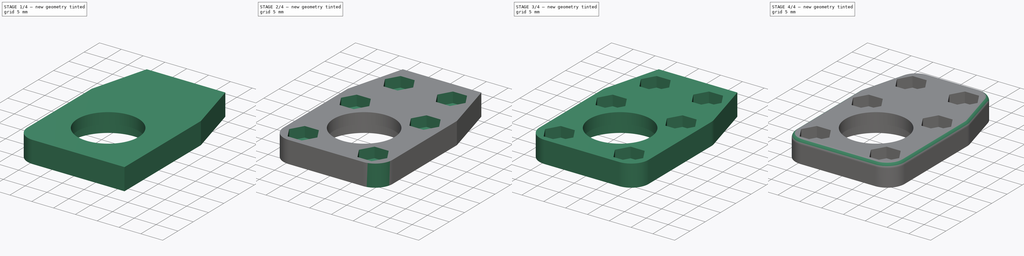
[diagram: build sequence overview — one tinted view per stage of 4, left to right]
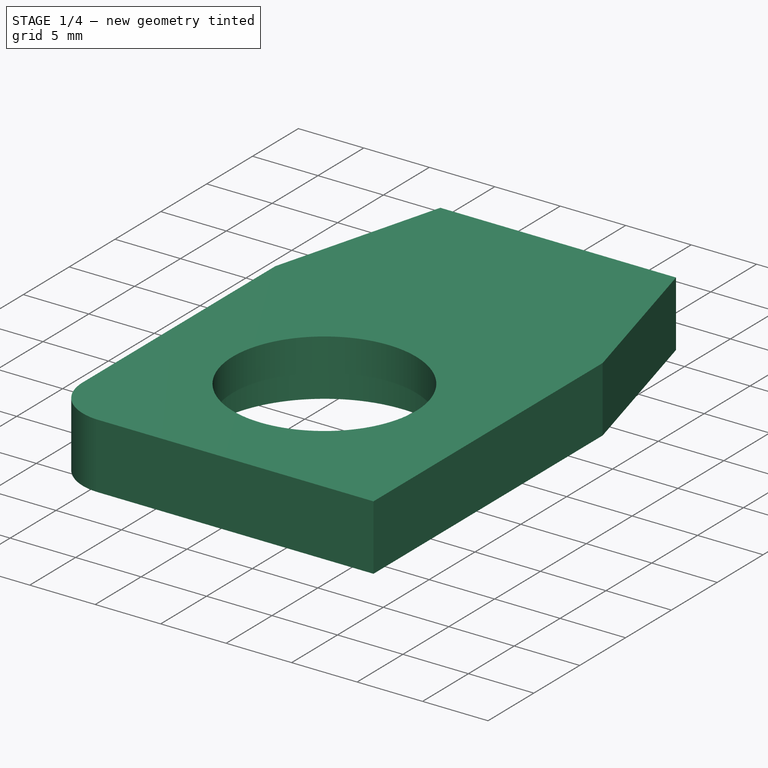
[diagram: stage 1 of 4 — iso view after this stage's code; geometry added in this stage tinted green]
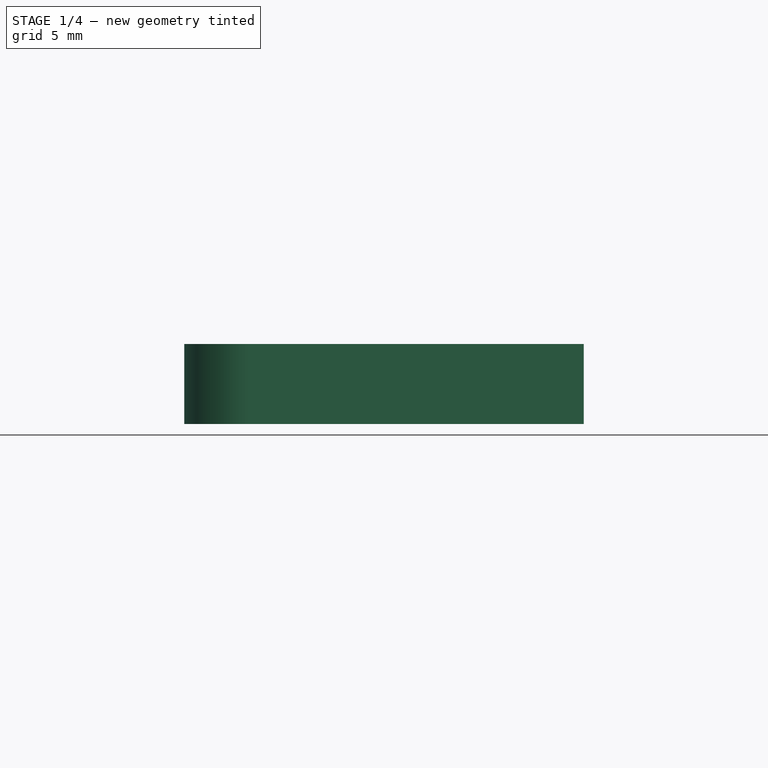
[diagram: stage 1 of 4 — front view after this stage's code; geometry added in this stage tinted green]
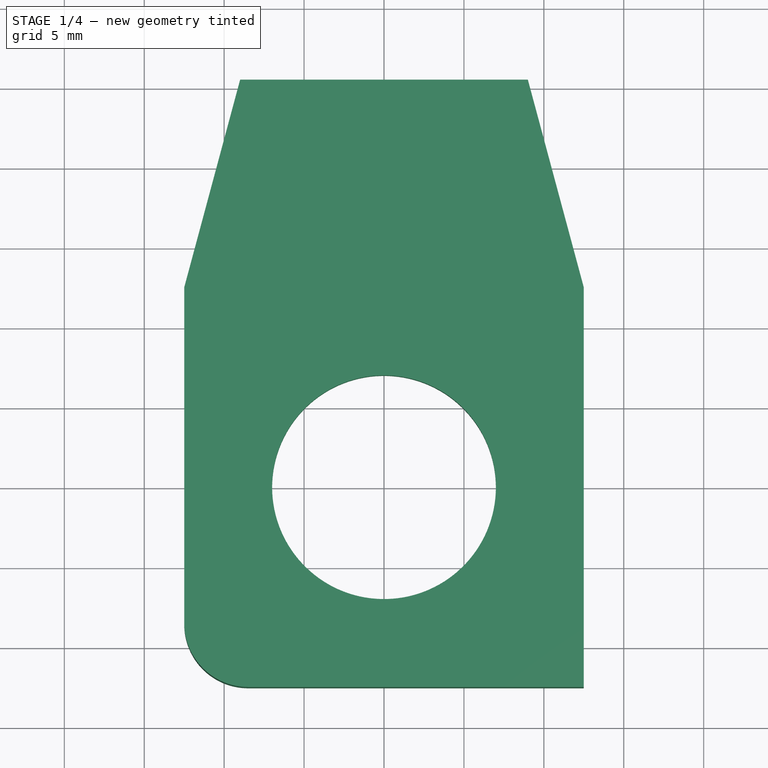
[diagram: stage 1 of 4 — top view after this stage's code; geometry added in this stage tinted green]
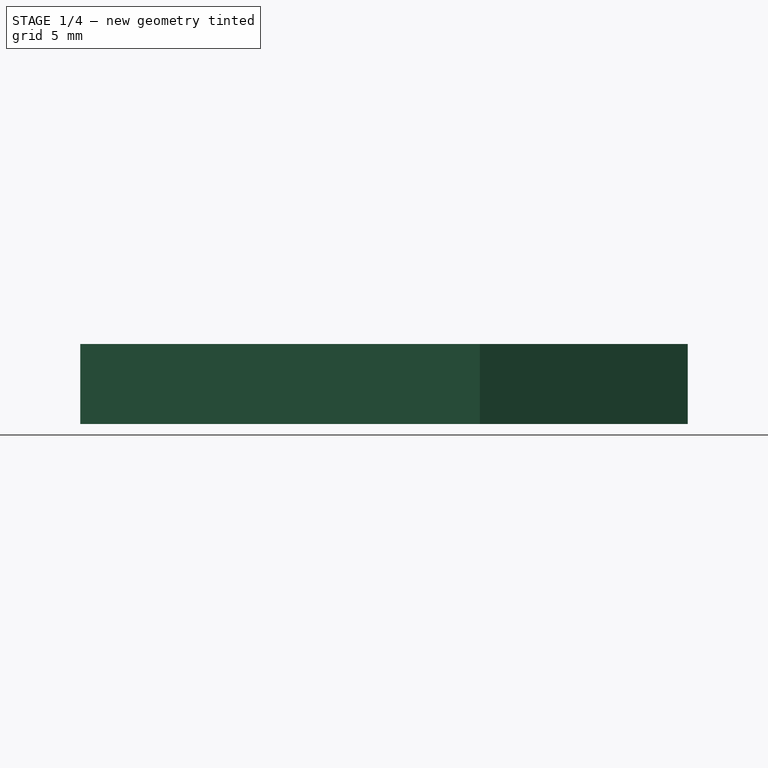
[diagram: stage 1 of 4 — right view after this stage's code; geometry added in this stage tinted green]
FCSTD DOCUMENT  (FreeCAD 0.16R6706 (Git))
Label: PushRodTailB_short
License: All rights reserved
LicenseURL: http://en.wikipedia.org/wiki/All_rights_reserved
objects: PartDesign::Fillet×7, Sketcher::SketchObject×4, PartDesign::Pocket×3, PartDesign::Pad×1
note: 19 computed .brp shape members not serialized (recipe doc carries the construction recipe); baked Part::Feature solids carry a one-line shape summary decoded from their .brp

FEATURE [Sketcher::SketchObject] Sketch
  sketch-geometry (25):
    g0: Circle CenterX=0 CenterY=0 CenterZ=0 NormalX=0 NormalY=0 NormalZ=1 Radius=7
    g1: Circle [constr] CenterX=0 CenterY=0 CenterZ=0 NormalX=0 NormalY=0 NormalZ=1 Radius=8.5
    g2: LineSegment StartX=-12.5 StartY=-12.5 StartZ=0 EndX=12.5 EndY=-12.5 EndZ=0
    g3: LineSegment StartX=12.5 StartY=-12.5 StartZ=0 EndX=12.5 EndY=12.5 EndZ=0
    g4: LineSegment StartX=12.5 StartY=12.5 StartZ=0 EndX=9 EndY=25.5 EndZ=0
    g5: LineSegment StartX=9 StartY=25.5 StartZ=0 EndX=-9 EndY=25.5 EndZ=0
    g6: LineSegment StartX=-9 StartY=25.5 StartZ=0 EndX=-12.5 EndY=12.5 EndZ=0
    g7: LineSegment StartX=-12.5 StartY=12.5 StartZ=0 EndX=-12.5 EndY=-12.5 EndZ=0
    g8: LineSegment [constr] StartX=-12.5 StartY=12.5 StartZ=0 EndX=12.5 EndY=12.5 EndZ=0
    g9: GeomPoint [constr] X=0 Y=-8.5 Z=0
    g10: LineSegment [constr] StartX=-3.05 StartY=27 StartZ=0 EndX=3.05 EndY=27 EndZ=0
    g11: LineSegment [constr] StartX=3.05 StartY=27 StartZ=0 EndX=3.05 EndY=9 EndZ=0
    g12: LineSegment [constr] StartX=3.05 StartY=9 StartZ=0 EndX=-3.05 EndY=9 EndZ=0
    g13: LineSegment [constr] StartX=-3.05 StartY=9 StartZ=0 EndX=-3.05 EndY=27 EndZ=0
    g14: Circle [constr] CenterX=-8 CenterY=8.5 CenterZ=0 NormalX=0 NormalY=0 NormalZ=1 Radius=1.7
    g15: Circle [constr] CenterX=8 CenterY=8.5 CenterZ=0 NormalX=0 NormalY=0 NormalZ=1 Radius=1.7
    g16: LineSegment [constr] StartX=-12.5 StartY=8.5 StartZ=0 EndX=12.5 EndY=8.5 EndZ=0
    g17: LineSegment [constr] StartX=-12.5 StartY=-8.5 StartZ=0 EndX=12.5 EndY=-8.5 EndZ=0
    g18: Circle [constr] CenterX=-8 CenterY=-8.5 CenterZ=0 NormalX=0 NormalY=0 NormalZ=1 Radius=1.7
    g19: Circle [constr] CenterX=8 CenterY=-8.5 CenterZ=0 NormalX=0 NormalY=0 NormalZ=1 Radius=1.7
    g20: Circle [constr] CenterX=0 CenterY=0 CenterZ=0 NormalX=0 NormalY=0 NormalZ=1 Radius=17
    g21: Circle [constr] CenterX=-6 CenterY=20 CenterZ=0 NormalX=0 NormalY=0 NormalZ=1 Radius=1.7
    g22: Circle [constr] CenterX=6 CenterY=20 CenterZ=0 NormalX=0 NormalY=0 NormalZ=1 Radius=1.7
    g23: LineSegment [constr] StartX=-6 StartY=20 StartZ=0 EndX=6 EndY=20 EndZ=0
    g24: Circle [constr] CenterX=-6 CenterY=20 CenterZ=0 NormalX=0 NormalY=0 NormalZ=1 Radius=2.5
  constraints (70):
    c: Coincident(g0,g-1)
    c: Radius(g0) = 7
    c: Coincident(g1,g-1)
    c: Radius(g1) = 8.5
    c: Horizontal(g2)
    c: Coincident(g2,g3)
    c: Vertical(g3)
    c: Coincident(g3,g4)
    c: Coincident(g4,g5)
    c: Horizontal(g5)
    c: Coincident(g5,g6)
    c: Coincident(g6,g7)
    c: Coincident(g7,g2)
    c: Vertical(g7)
    c: Coincident(g8,g6)
    c: Coincident(g8,g3)
    c: Horizontal(g8)
    c: Symmetric(g4,g5,g-2)
    c: Symmetric(g2,g6,g-1)
    c: Equal(g2,g7)
    c: PointOnObject(g9,g1)
    c: PointOnObject(g9,g-2)
    c: DistanceY(g2,g9) = 4
    c: DistanceX(g5,g4) = 18
    c: DistanceY(g6,g5) = 13
    c: Coincident(g10,g11)
    c: Coincident(g11,g12)
    c: Coincident(g12,g13)
    c: Coincident(g13,g10)
    c: Horizontal(g10)
    c: Horizontal(g12)
    c: Vertical(g11)
    c: Vertical(g13)
    c: Symmetric(g10,g10,g-2)
    c: DistanceX(g10,g10) = 6.1
    c: DistanceY(g-1,g12) = 9
    c: PointOnObject(g16,g7)
    c: Horizontal(g16)
    c: PointOnObject(g16,g3)
    c: PointOnObject(g14,g16)
    c: PointOnObject(g15,g16)
    c: Symmetric(g14,g15,g-2)
    c: DistanceX(g14,g15) = 16
    c: Radius(g14) = 1.7
    c: Equal(g14,g15)
    c: PointOnObject(g17,g7)
    c: PointOnObject(g17,g3)
    c: Horizontal(g17)
    c: PointOnObject(g18,g17)
    c: PointOnObject(g19,g17)
    c: Symmetric(g19,g18,g-2)
    c: Equal(g18,g19)
    c: Equal(g19,g14)
    c: DistanceX(g18,g19) = 16
    c: Tangent(g1,g17)
    c: Tangent(g1,g16)
    c: DistanceY(g11,g10) = 18
    c: Distance(g-1,g2) = 17.6777
    c: Radius(g20) = 17
    c: Coincident(g20,g-1)
    c: Coincident(g23,g21)
    c: Coincident(g23,g22)
    c: Horizontal(g23)
    c: Symmetric(g22,g21,g-2)
    c: DistanceY(g-1,g22) = 20
    c: Equal(g15,g22)
    c: Equal(g21,g22)
    c: DistanceX(g21,g22) = 12
    c: Coincident(g24,g21)
    c: Radius(g24) = 2.5
FEATURE [PartDesign::Pad] Pad
  Length = 5
  Length2 = 100
  Sketch = -> Sketch
  Type = 0
FEATURE [Sketcher::SketchObject] Sketch001
  Placement = pos=(0,0,0) rot=(1,0,0;3.14159rad)
  Support = -> Pad [Face8]
  sketch-geometry (5):
    g0: Circle CenterX=0 CenterY=0 CenterZ=0 NormalX=0 NormalY=0 NormalZ=1 Radius=8.5
    g1: LineSegment StartX=-3.1 StartY=-10 StartZ=0 EndX=3.1 EndY=-10 EndZ=0
    g2: LineSegment StartX=3.1 StartY=-10 StartZ=0 EndX=3.1 EndY=-30 EndZ=0
    g3: LineSegment StartX=3.1 StartY=-30 StartZ=0 EndX=-3.1 EndY=-30 EndZ=0
    g4: LineSegment StartX=-3.1 StartY=-30 StartZ=0 EndX=-3.1 EndY=-10 EndZ=0
  constraints (14):
    c: Coincident(g0,g-1)
    c: Radius(g0) = 8.5
    c: Coincident(g1,g2)
    c: Coincident(g2,g3)
    c: Coincident(g3,g4)
    c: Coincident(g4,g1)
    c: Horizontal(g1)
    c: Horizontal(g3)
    c: Vertical(g2)
    c: Vertical(g4)
    c: Symmetric(g3,g2,g-2)
    c: DistanceX(g1,g1) = 6.2
    c: DistanceY(g2,g1) = 20
    c: DistanceY(g1,g-1) = 10
FEATURE [PartDesign::Pocket] Pocket
  Length = 2.5
  Sketch = -> Sketch001
  Type = 0
FEATURE [PartDesign::Fillet] Fillet
  Base = -> Pocket [Edge1]
  Radius = 4
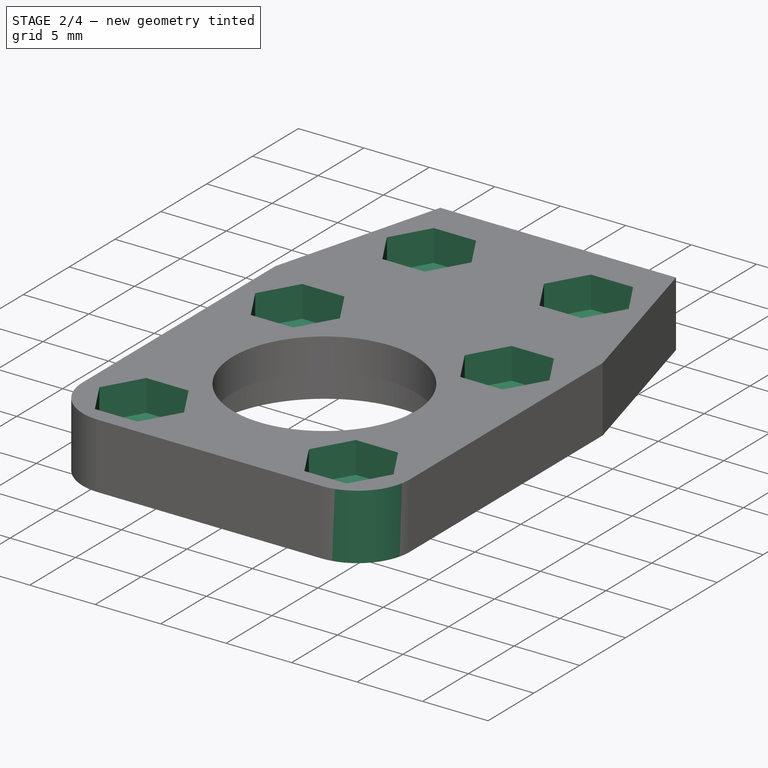
[diagram: stage 2 of 4 — iso view after this stage's code; geometry added in this stage tinted green]
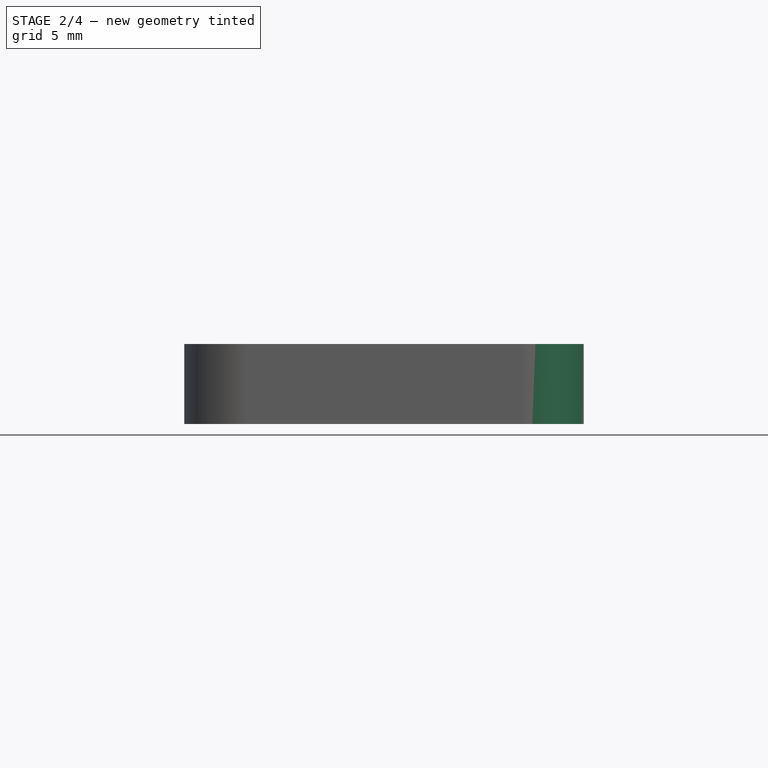
[diagram: stage 2 of 4 — front view after this stage's code; geometry added in this stage tinted green]
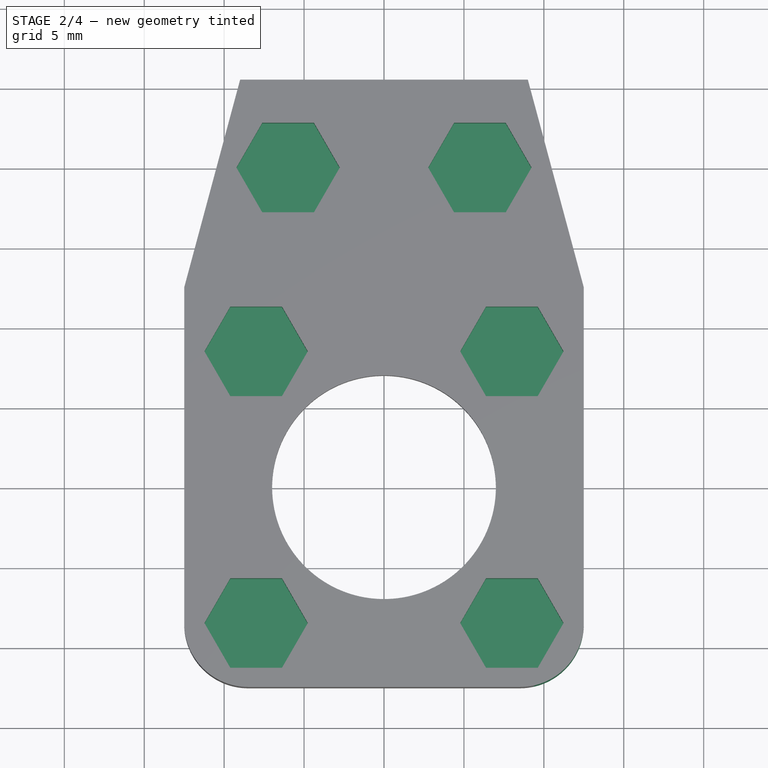
[diagram: stage 2 of 4 — top view after this stage's code; geometry added in this stage tinted green]
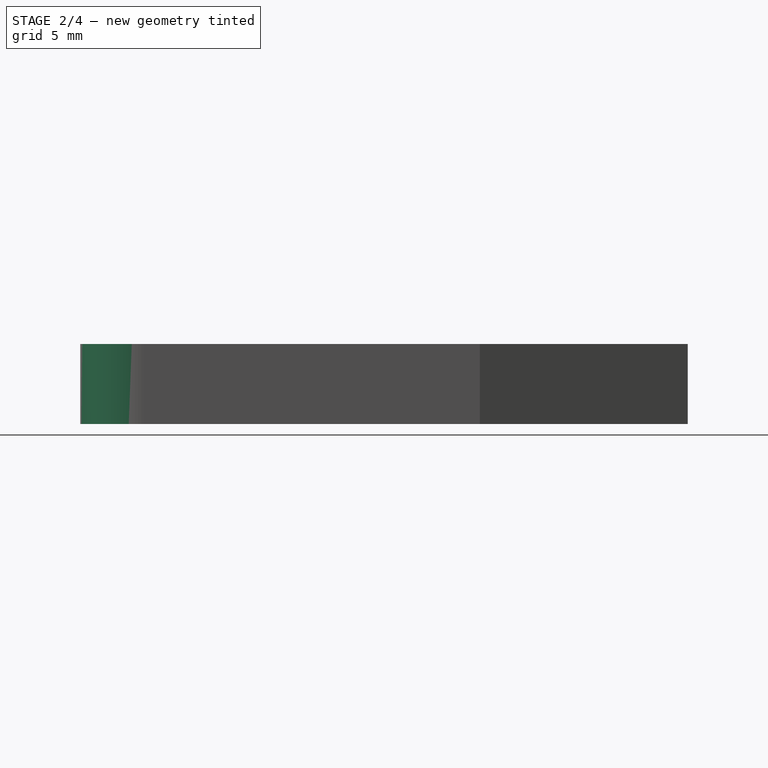
[diagram: stage 2 of 4 — right view after this stage's code; geometry added in this stage tinted green]
FEATURE [PartDesign::Fillet] Fillet001
  Base = -> Fillet [Edge3]
  Radius = 4
FEATURE [Sketcher::SketchObject] Sketch002
  Placement = pos=(0,0,5) rot=(0,0,1;0rad)
  Support = -> Fillet001 [Face5]
  sketch-geometry (47):
    g0: LineSegment [constr] StartX=-8 StartY=8.5 StartZ=0 EndX=8 EndY=8.5 EndZ=0
    g1: LineSegment [constr] StartX=8 StartY=8.5 StartZ=0 EndX=8 EndY=-8.5 EndZ=0
    g2: LineSegment [constr] StartX=8 StartY=-8.5 StartZ=0 EndX=-8 EndY=-8.5 EndZ=0
    g3: LineSegment [constr] StartX=-8 StartY=-8.5 StartZ=0 EndX=-8 EndY=8.5 EndZ=0
    g4: LineSegment [constr] StartX=-6 StartY=20 StartZ=0 EndX=6 EndY=20 EndZ=0
    g5: LineSegment StartX=-9.61658 StartY=11.3 StartZ=0 EndX=-11.2332 EndY=8.5 EndZ=0
    g6: LineSegment StartX=-11.2332 StartY=8.5 StartZ=0 EndX=-9.61658 EndY=5.7 EndZ=0
    g7: LineSegment StartX=-9.61658 StartY=5.7 StartZ=0 EndX=-6.38342 EndY=5.7 EndZ=0
    g8: LineSegment StartX=-6.38342 StartY=5.7 StartZ=0 EndX=-4.76684 EndY=8.5 EndZ=0
    g9: LineSegment StartX=-4.76684 StartY=8.5 StartZ=0 EndX=-6.38342 EndY=11.3 EndZ=0
    g10: LineSegment StartX=-6.38342 StartY=11.3 StartZ=0 EndX=-9.61658 EndY=11.3 EndZ=0
    g11: Circle [constr] CenterX=-8 CenterY=8.5 CenterZ=0 NormalX=0 NormalY=0 NormalZ=1 Radius=3.23316
    g12: LineSegment StartX=6.38342 StartY=11.3 StartZ=0 EndX=4.76684 EndY=8.5 EndZ=0
    g13: LineSegment StartX=4.76684 StartY=8.5 StartZ=0 EndX=6.38342 EndY=5.7 EndZ=0
    g14: LineSegment StartX=6.38342 StartY=5.7 StartZ=0 EndX=9.61658 EndY=5.7 EndZ=0
    g15: LineSegment StartX=9.61658 StartY=5.7 StartZ=0 EndX=11.2332 EndY=8.5 EndZ=0
    g16: LineSegment StartX=11.2332 StartY=8.5 StartZ=0 EndX=9.61658 EndY=11.3 EndZ=0
    g17: LineSegment StartX=9.61658 StartY=11.3 StartZ=0 EndX=6.38342 EndY=11.3 EndZ=0
    g18: Circle [constr] CenterX=8 CenterY=8.5 CenterZ=0 NormalX=0 NormalY=0 NormalZ=1 Radius=3.23316
    g19: LineSegment StartX=-9.61658 StartY=-5.7 StartZ=0 EndX=-11.2332 EndY=-8.5 EndZ=0
    g20: LineSegment StartX=-11.2332 StartY=-8.5 StartZ=0 EndX=-9.61658 EndY=-11.3 EndZ=0
    g21: LineSegment StartX=-9.61658 StartY=-11.3 StartZ=0 EndX=-6.38342 EndY=-11.3 EndZ=0
    g22: LineSegment StartX=-6.38342 StartY=-11.3 StartZ=0 EndX=-4.76684 EndY=-8.5 EndZ=0
    g23: LineSegment StartX=-4.76684 StartY=-8.5 StartZ=0 EndX=-6.38342 EndY=-5.7 EndZ=0
    g24: LineSegment StartX=-6.38342 StartY=-5.7 StartZ=0 EndX=-9.61658 EndY=-5.7 EndZ=0
    g25: Circle [constr] CenterX=-8 CenterY=-8.5 CenterZ=0 NormalX=0 NormalY=0 NormalZ=1 Radius=3.23316
    g26: LineSegment StartX=6.38342 StartY=-5.7 StartZ=0 EndX=4.76684 EndY=-8.5 EndZ=0
    g27: LineSegment StartX=4.76684 StartY=-8.5 StartZ=0 EndX=6.38342 EndY=-11.3 EndZ=0
    g28: LineSegment StartX=6.38342 StartY=-11.3 StartZ=0 EndX=9.61658 EndY=-11.3 EndZ=0
    g29: LineSegment StartX=9.61658 StartY=-11.3 StartZ=0 EndX=11.2332 EndY=-8.5 EndZ=0
    g30: LineSegment StartX=11.2332 StartY=-8.5 StartZ=0 EndX=9.61658 EndY=-5.7 EndZ=0
    g31: LineSegment StartX=9.61658 StartY=-5.7 StartZ=0 EndX=6.38342 EndY=-5.7 EndZ=0
    g32: Circle [constr] CenterX=8 CenterY=-8.5 CenterZ=0 NormalX=0 NormalY=0 NormalZ=1 Radius=3.23316
    g33: LineSegment StartX=-7.61658 StartY=22.8 StartZ=0 EndX=-9.23316 EndY=20 EndZ=0
    g34: LineSegment StartX=-9.23316 StartY=20 StartZ=0 EndX=-7.61658 EndY=17.2 EndZ=0
    g35: LineSegment StartX=-7.61658 StartY=17.2 StartZ=0 EndX=-4.38342 EndY=17.2 EndZ=0
    g36: LineSegment StartX=-4.38342 StartY=17.2 StartZ=0 EndX=-2.76684 EndY=20 EndZ=0
    g37: LineSegment StartX=-2.76684 StartY=20 StartZ=0 EndX=-4.38342 EndY=22.8 EndZ=0
    g38: LineSegment StartX=-4.38342 StartY=22.8 StartZ=0 EndX=-7.61658 EndY=22.8 EndZ=0
    g39: Circle [constr] CenterX=-6 CenterY=20 CenterZ=0 NormalX=0 NormalY=0 NormalZ=1 Radius=3.23316
    g40: LineSegment StartX=4.38342 StartY=22.8 StartZ=0 EndX=2.76684 EndY=20 EndZ=0
    g41: LineSegment StartX=2.76684 StartY=20 StartZ=0 EndX=4.38342 EndY=17.2 EndZ=0
    g42: LineSegment StartX=4.38342 StartY=17.2 StartZ=0 EndX=7.61658 EndY=17.2 EndZ=0
    g43: LineSegment StartX=7.61658 StartY=17.2 StartZ=0 EndX=9.23316 EndY=20 EndZ=0
    g44: LineSegment StartX=9.23316 StartY=20 StartZ=0 EndX=7.61658 EndY=22.8 EndZ=0
    g45: LineSegment StartX=7.61658 StartY=22.8 StartZ=0 EndX=4.38342 EndY=22.8 EndZ=0
    g46: Circle [constr] CenterX=6 CenterY=20 CenterZ=0 NormalX=0 NormalY=0 NormalZ=1 Radius=3.23316
  constraints (111):
    c: Coincident(g0,g1)
    c: Coincident(g1,g2)
    c: Coincident(g2,g3)
    c: Coincident(g3,g0)
    c: Horizontal(g0)
    c: Horizontal(g2)
    c: Vertical(g1)
    c: Vertical(g3)
    c: DistanceX(g2,g1) = 16
    c: Symmetric(g2,g0,g-1)
    c: DistanceY(g1,g0) = 17
    c: Horizontal(g4)
    c: Symmetric(g4,g4,g-2)
    c: DistanceX(g4,g4) = 12
    c: Coincident(g5,g6)
    c: Coincident(g6,g7)
    c: Coincident(g7,g8)
    c: Coincident(g8,g9)
    c: Coincident(g9,g10)
    c: Coincident(g10,g5)
    c: Equal(g5, g6-g10) x5
    c: PointOnObject(g5,g11)
    c: PointOnObject(g6,g11)
    c: PointOnObject(g7,g11)
    c: PointOnObject(g8,g11)
    c: PointOnObject(g9,g11)
    c: PointOnObject(g10,g11)
    c: Coincident(g11,g0)
    c: Coincident(g12,g13)
    c: Coincident(g13,g14)
    c: Coincident(g14,g15)
    c: Coincident(g15,g16)
    c: Coincident(g16,g17)
    c: Coincident(g17,g12)
    c: Equal(g12, g13-g17) x5
    c: PointOnObject(g12,g18)
    c: PointOnObject(g13,g18)
    c: PointOnObject(g14,g18)
    c: PointOnObject(g15,g18)
    c: PointOnObject(g16,g18)
    c: PointOnObject(g17,g18)
    c: Coincident(g19,g20)
    c: Coincident(g20,g21)
    c: Coincident(g21,g22)
    c: Coincident(g22,g23)
    c: Coincident(g23,g24)
    c: Coincident(g24,g19)
    c: Equal(g19, g20-g24) x5
    c: PointOnObject(g19,g25)
    c: PointOnObject(g20,g25)
    c: PointOnObject(g21,g25)
    c: PointOnObject(g22,g25)
    c: PointOnObject(g23,g25)
    c: PointOnObject(g24,g25)
    c: Coincident(g25,g2)
    c: Coincident(g26,g27)
    c: Coincident(g27,g28)
    c: Coincident(g28,g29)
    c: Coincident(g29,g30)
    c: Coincident(g30,g31)
    c: Coincident(g31,g26)
    c: Equal(g26, g27-g31) x5
    c: PointOnObject(g26,g32)
    c: PointOnObject(g27,g32)
    c: PointOnObject(g28,g32)
    c: PointOnObject(g29,g32)
    c: PointOnObject(g30,g32)
    c: PointOnObject(g31,g32)
    c: Coincident(g32,g1)
    c: Coincident(g33,g34)
    c: Coincident(g34,g35)
    c: Coincident(g35,g36)
    c: Coincident(g36,g37)
    c: Coincident(g37,g38)
    c: Coincident(g38,g33)
    c: Equal(g33, g34-g38) x5
    c: PointOnObject(g33,g39)
    c: PointOnObject(g34,g39)
    c: PointOnObject(g35,g39)
    c: PointOnObject(g36,g39)
    c: PointOnObject(g37,g39)
    c: PointOnObject(g38,g39)
    c: Coincident(g39,g4)
    c: Coincident(g40,g41)
    c: Coincident(g41,g42)
    c: Coincident(g42,g43)
    c: Coincident(g43,g44)
    c: Coincident(g44,g45)
    c: Coincident(g45,g40)
    c: Equal(g40, g41-g45) x5
    c: PointOnObject(g40,g46)
    c: PointOnObject(g41,g46)
    c: PointOnObject(g42,g46)
    c: PointOnObject(g43,g46)
    c: PointOnObject(g44,g46)
    c: PointOnObject(g45,g46)
    c: Horizontal(g21)
    c: Horizontal(g7)
    c: Coincident(g18,g0)
    c: Horizontal(g14)
    c: Horizontal(g28)
    c: Horizontal(g35)
    c: Horizontal(g42)
    c: Coincident(g46,g4)
    c: DistanceY(g14,g16) = 5.6
    c: Equal(g11,g18)
    c: Equal(g18,g32)
    c: Equal(g18,g25)
    c: Equal(g18,g39)
    c: Equal(g46,g18)
    c: DistanceY(g-1,g40) = 20
FEATURE [PartDesign::Pocket] Pocket001
  Length = 2.4
  Sketch = -> Sketch002
  Type = 0
FEATURE [Sketcher::SketchObject] Sketch003
  Placement = pos=(0,0,0) rot=(1,0,0;3.14159rad)
  Support = -> Pocket001 [Face2]
  sketch-geometry (25):
    g0: Circle [constr] CenterX=0 CenterY=0 CenterZ=0 NormalX=0 NormalY=0 NormalZ=1 Radius=7
    g1: Circle [constr] CenterX=0 CenterY=0 CenterZ=0 NormalX=0 NormalY=0 NormalZ=1 Radius=8.5
    g2: LineSegment [constr] StartX=-12.5 StartY=-12.5 StartZ=0 EndX=12.5 EndY=-12.5 EndZ=0
    g3: LineSegment [constr] StartX=12.5 StartY=-12.5 StartZ=0 EndX=12.5 EndY=12.5 EndZ=0
    g4: LineSegment [constr] StartX=12.5 StartY=12.5 StartZ=0 EndX=9 EndY=28.5 EndZ=0
    g5: LineSegment [constr] StartX=9 StartY=28.5 StartZ=0 EndX=-9 EndY=28.5 EndZ=0
    g6: LineSegment [constr] StartX=-9 StartY=28.5 StartZ=0 EndX=-12.5 EndY=12.5 EndZ=0
    g7: LineSegment [constr] StartX=-12.5 StartY=12.5 StartZ=0 EndX=-12.5 EndY=-12.5 EndZ=0
    g8: LineSegment [constr] StartX=-12.5 StartY=12.5 StartZ=0 EndX=12.5 EndY=12.5 EndZ=0
    g9: GeomPoint [constr] X=0 Y=-8.5 Z=0
    g10: LineSegment [constr] StartX=-3.05 StartY=27 StartZ=0 EndX=3.05 EndY=27 EndZ=0
    g11: LineSegment [constr] StartX=3.05 StartY=27 StartZ=0 EndX=3.05 EndY=9 EndZ=0
    g12: LineSegment [constr] StartX=3.05 StartY=9 StartZ=0 EndX=-3.05 EndY=9 EndZ=0
    g13: LineSegment [constr] StartX=-3.05 StartY=9 StartZ=0 EndX=-3.05 EndY=27 EndZ=0
    g14: Circle CenterX=-8 CenterY=8.5 CenterZ=0 NormalX=0 NormalY=0 NormalZ=1 Radius=1.7
    g15: Circle CenterX=8 CenterY=8.5 CenterZ=0 NormalX=0 NormalY=0 NormalZ=1 Radius=1.7
    g16: LineSegment [constr] StartX=-12.5 StartY=8.5 StartZ=0 EndX=12.5 EndY=8.5 EndZ=0
    g17: LineSegment [constr] StartX=-12.5 StartY=-8.5 StartZ=0 EndX=12.5 EndY=-8.5 EndZ=0
    g18: Circle CenterX=-8 CenterY=-8.5 CenterZ=0 NormalX=0 NormalY=0 NormalZ=1 Radius=1.7
    g19: Circle CenterX=8 CenterY=-8.5 CenterZ=0 NormalX=0 NormalY=0 NormalZ=1 Radius=1.7
    g20: Circle [constr] CenterX=0 CenterY=0 CenterZ=0 NormalX=0 NormalY=0 NormalZ=1 Radius=17
    g21: Circle CenterX=-6 CenterY=-20 CenterZ=0 NormalX=0 NormalY=0 NormalZ=1 Radius=1.7
    g22: Circle CenterX=6 CenterY=-20 CenterZ=0 NormalX=0 NormalY=0 NormalZ=1 Radius=1.7
    g23: LineSegment [constr] StartX=-6 StartY=-20 StartZ=0 EndX=6 EndY=-20 EndZ=0
    g24: Circle [constr] CenterX=-6 CenterY=-20 CenterZ=0 NormalX=0 NormalY=0 NormalZ=1 Radius=2.5
  constraints (70):
    c: Coincident(g0,g-1)
    c: Radius(g0) = 7
    c: Coincident(g1,g-1)
    c: Radius(g1) = 8.5
    c: Horizontal(g2)
    c: Coincident(g2,g3)
    c: Vertical(g3)
    c: Coincident(g3,g4)
    c: Coincident(g4,g5)
    c: Horizontal(g5)
    c: Coincident(g5,g6)
    c: Coincident(g6,g7)
    c: Coincident(g7,g2)
    c: Vertical(g7)
    c: Coincident(g8,g6)
    c: Coincident(g8,g3)
    c: Horizontal(g8)
    c: Symmetric(g4,g5,g-2)
    c: Symmetric(g2,g6,g-1)
    c: Equal(g2,g7)
    c: PointOnObject(g9,g1)
    c: PointOnObject(g9,g-2)
    c: DistanceY(g2,g9) = 4
    c: DistanceX(g5,g4) = 18
    c: DistanceY(g6,g5) = 16
    c: Coincident(g10,g11)
    c: Coincident(g11,g12)
    c: Coincident(g12,g13)
    c: Coincident(g13,g10)
    c: Horizontal(g10)
    c: Horizontal(g12)
    c: Vertical(g11)
    c: Vertical(g13)
    c: Symmetric(g10,g10,g-2)
    c: DistanceX(g10,g10) = 6.1
    c: DistanceY(g-1,g12) = 9
    c: PointOnObject(g16,g7)
    c: Horizontal(g16)
    c: PointOnObject(g16,g3)
    c: PointOnObject(g14,g16)
    c: PointOnObject(g15,g16)
    c: Symmetric(g14,g15,g-2)
    c: DistanceX(g14,g15) = 16
    c: Radius(g14) = 1.7
    c: Equal(g14,g15)
    c: PointOnObject(g17,g7)
    c: PointOnObject(g17,g3)
    c: Horizontal(g17)
    c: PointOnObject(g18,g17)
    c: PointOnObject(g19,g17)
    c: Symmetric(g19,g18,g-2)
    c: Equal(g18,g19)
    c: Equal(g19,g14)
    c: DistanceX(g18,g19) = 16
    c: Tangent(g1,g17)
    c: Tangent(g1,g16)
    c: DistanceY(g11,g10) = 18
    c: Distance(g-1,g2) = 17.6777
    c: Radius(g20) = 17
    c: Coincident(g20,g-1)
    c: Coincident(g23,g21)
    c: Coincident(g23,g22)
    c: Horizontal(g23)
    c: Symmetric(g22,g21,g-2)
    c: Equal(g15,g22)
    c: Equal(g21,g22)
    c: DistanceX(g21,g22) = 12
    c: Coincident(g24,g21)
    c: Radius(g24) = 2.5
    c: DistanceY(g22,g-1) = 20
FEATURE [PartDesign::Pocket] Pocket002
  Length = 2.4
  Sketch = -> Sketch003
  Type = 0
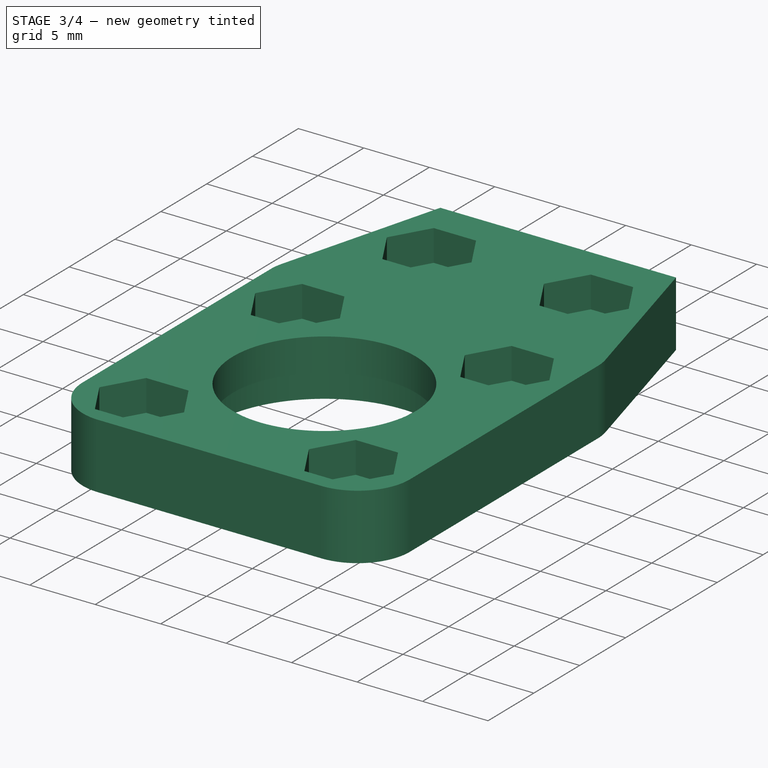
[diagram: stage 3 of 4 — iso view after this stage's code; geometry added in this stage tinted green]
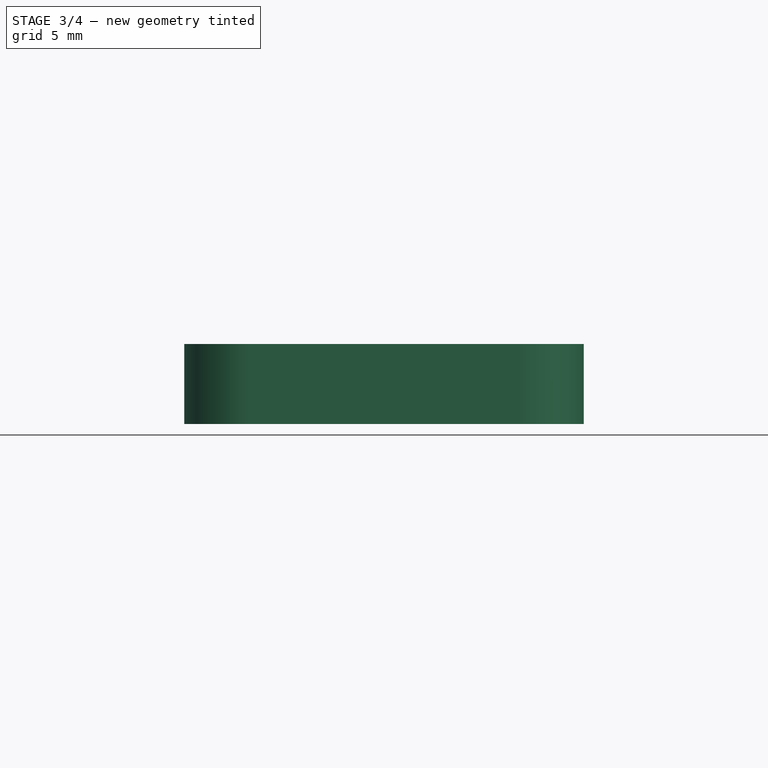
[diagram: stage 3 of 4 — front view after this stage's code; geometry added in this stage tinted green]
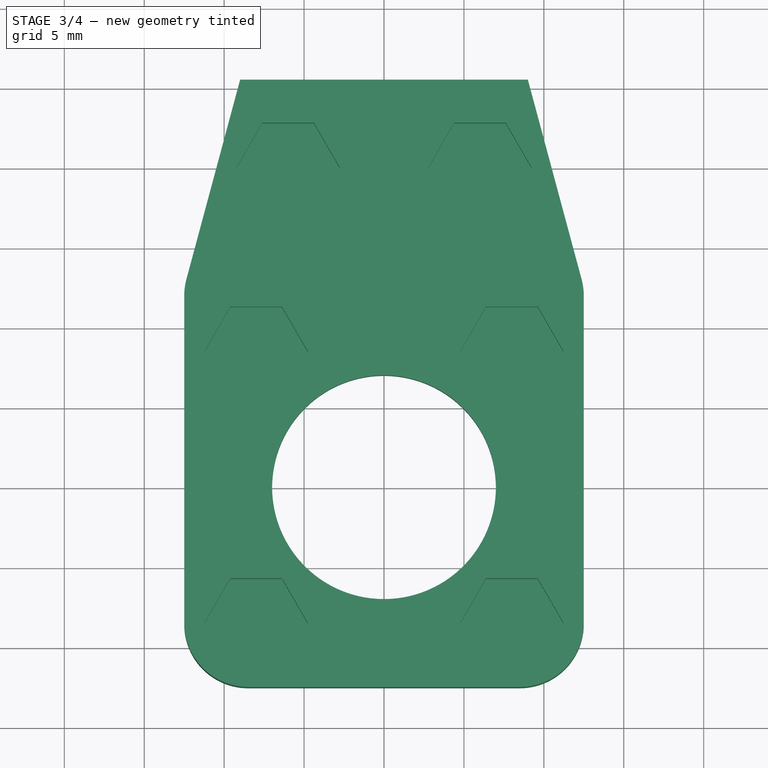
[diagram: stage 3 of 4 — top view after this stage's code; geometry added in this stage tinted green]
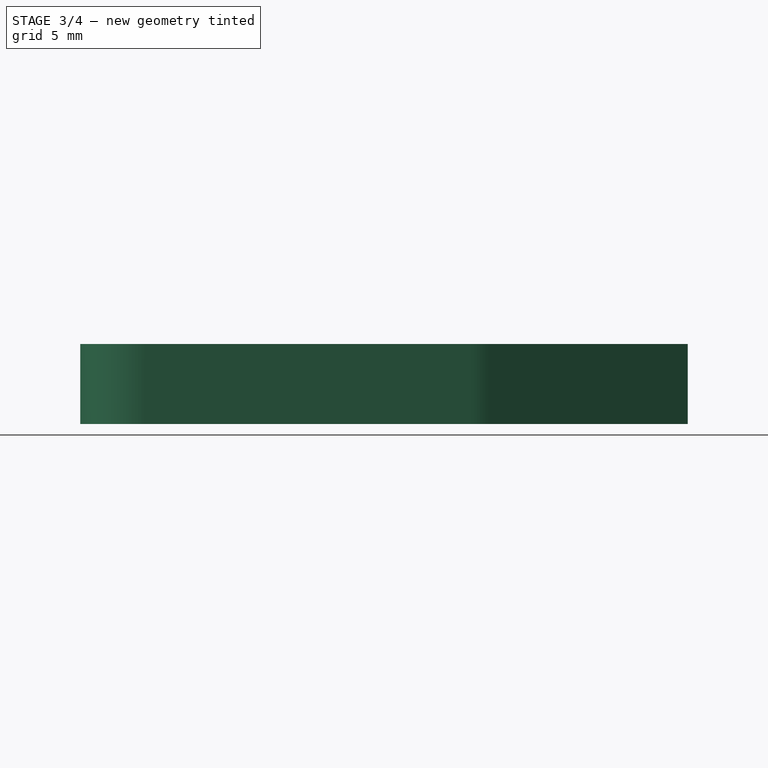
[diagram: stage 3 of 4 — right view after this stage's code; geometry added in this stage tinted green]
FEATURE [PartDesign::Fillet] Fillet002
  Base = -> Pocket002 [Edge69]
  Radius = 4
FEATURE [PartDesign::Fillet] Fillet003
  Base = -> Fillet002 [Edge41]
  Radius = 4
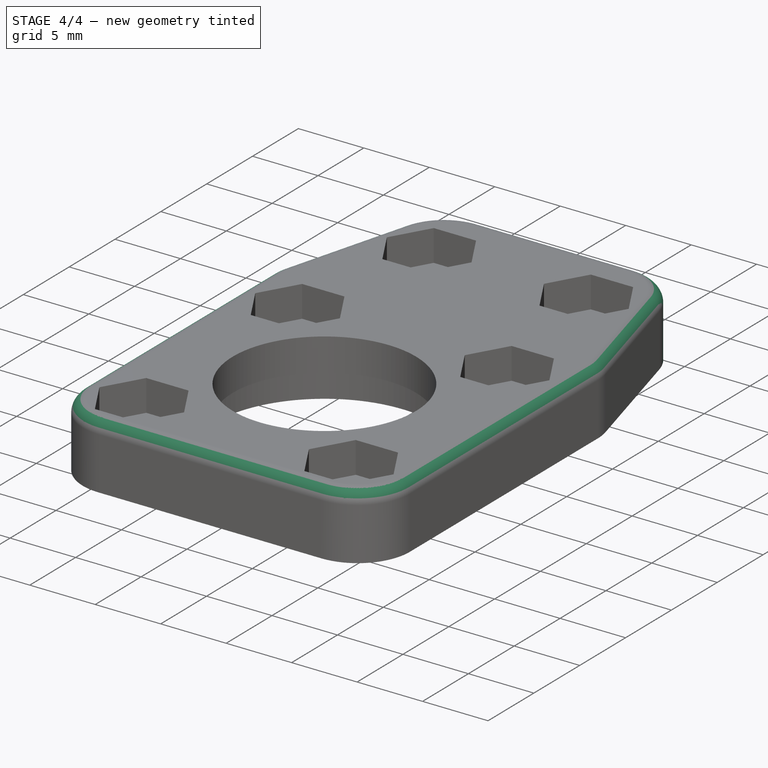
[diagram: stage 4 of 4 — iso view after this stage's code; geometry added in this stage tinted green]
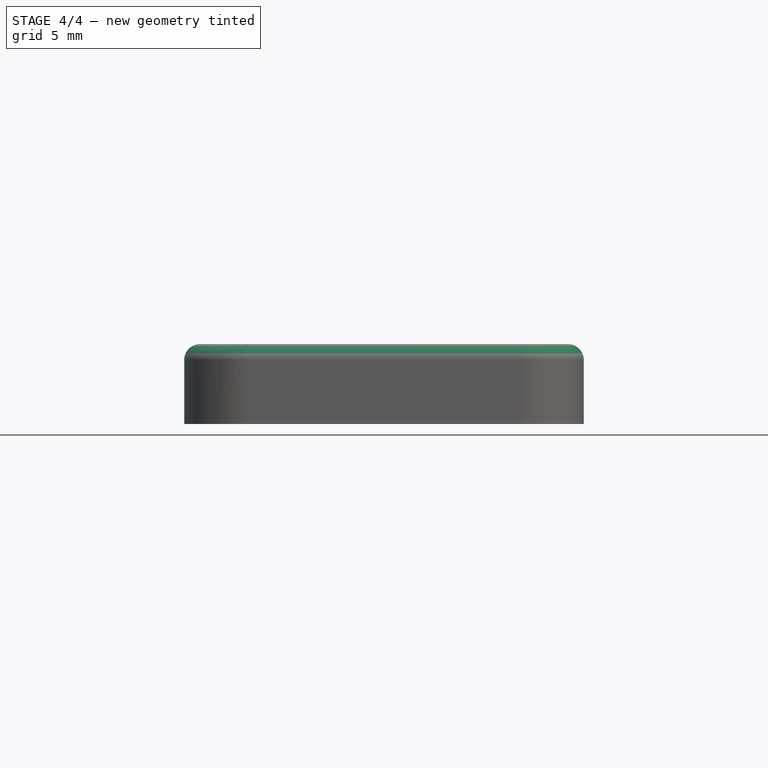
[diagram: stage 4 of 4 — front view after this stage's code; geometry added in this stage tinted green]
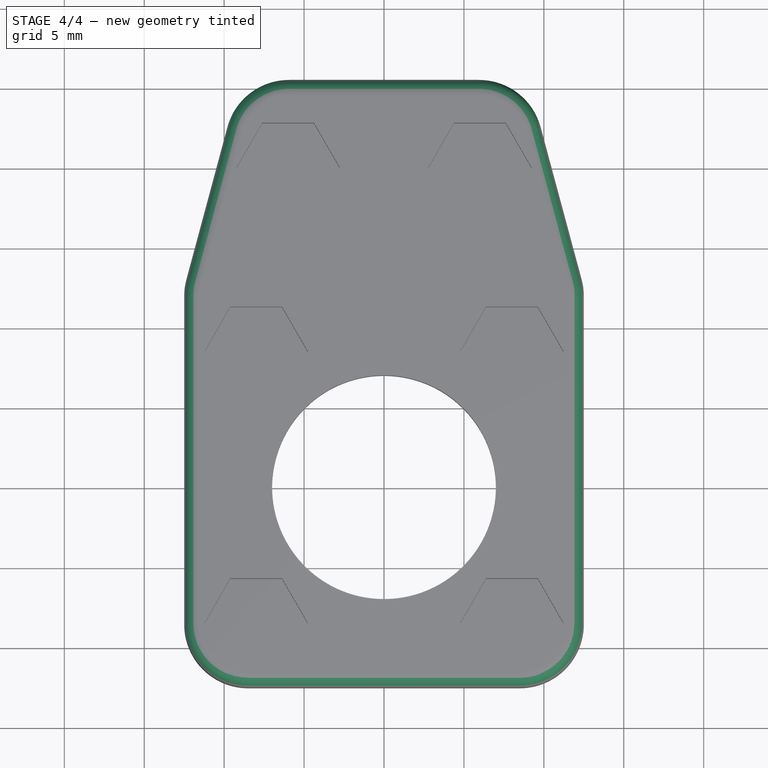
[diagram: stage 4 of 4 — top view after this stage's code; geometry added in this stage tinted green]
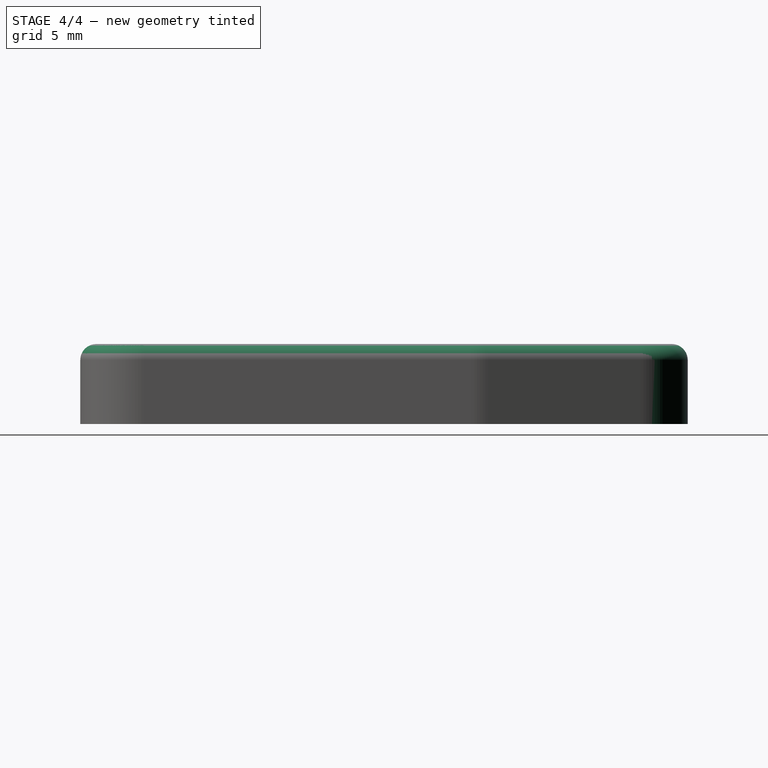
[diagram: stage 4 of 4 — right view after this stage's code; geometry added in this stage tinted green]
FEATURE [PartDesign::Fillet] Fillet004
  Base = -> Fillet003 [Edge29]
  Radius = 4
FEATURE [PartDesign::Fillet] Fillet005
  Base = -> Fillet004 [Edge33]
  Radius = 4
FEATURE [PartDesign::Fillet] Fillet006
  Base = -> Fillet005 [Edge35]
  Radius = 1
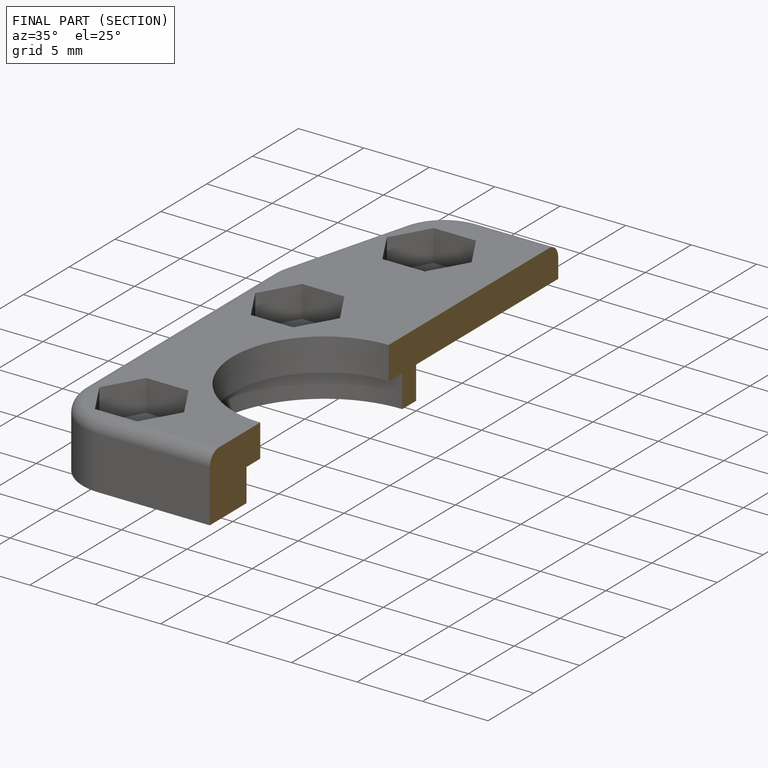
[diagram: finished part — half-section view (interior)]
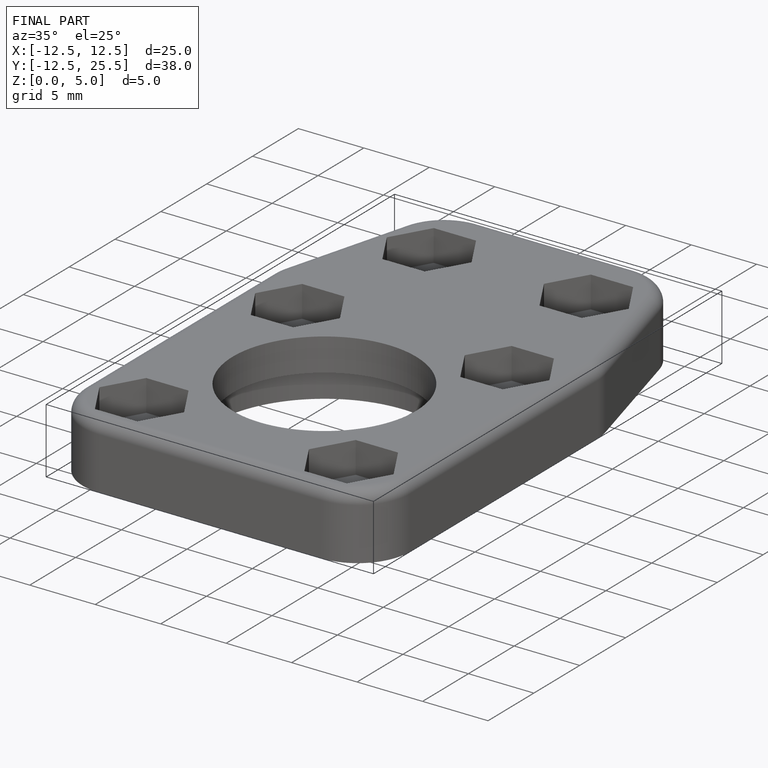
[diagram: finished part — iso view with bounding-box wireframe]
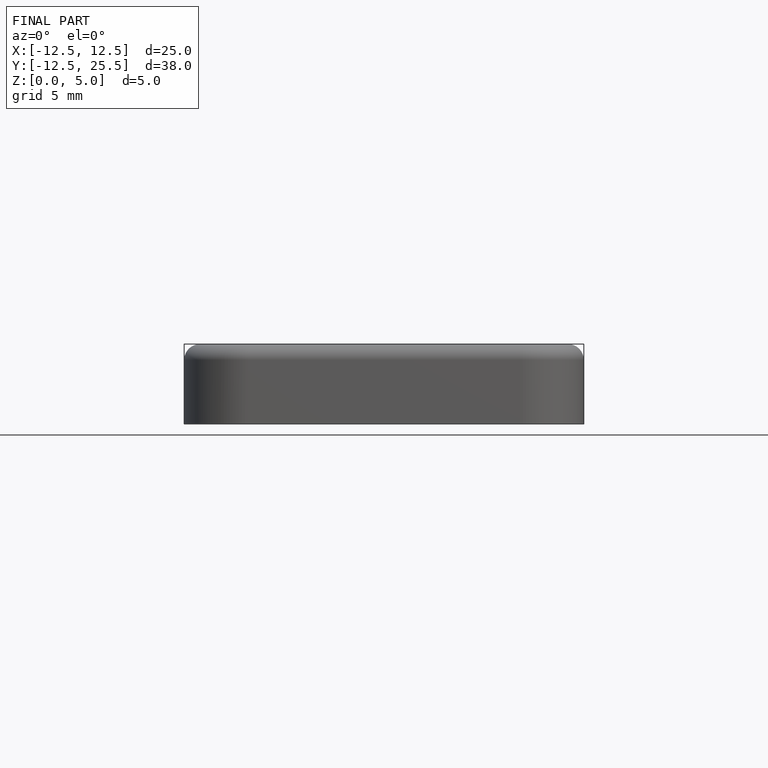
[diagram: finished part — front view with bounding-box wireframe]
